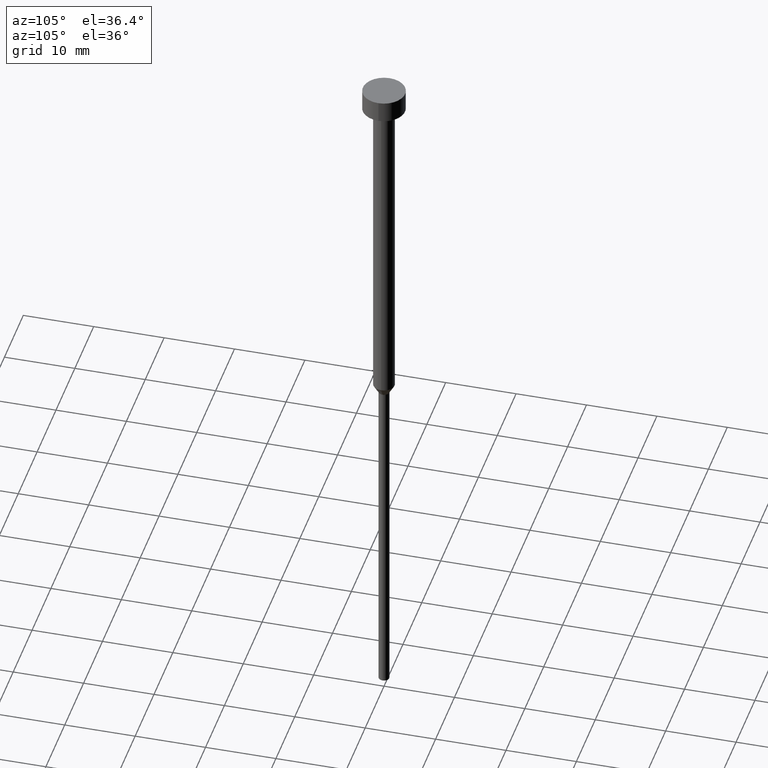
[diagram: clean part render]
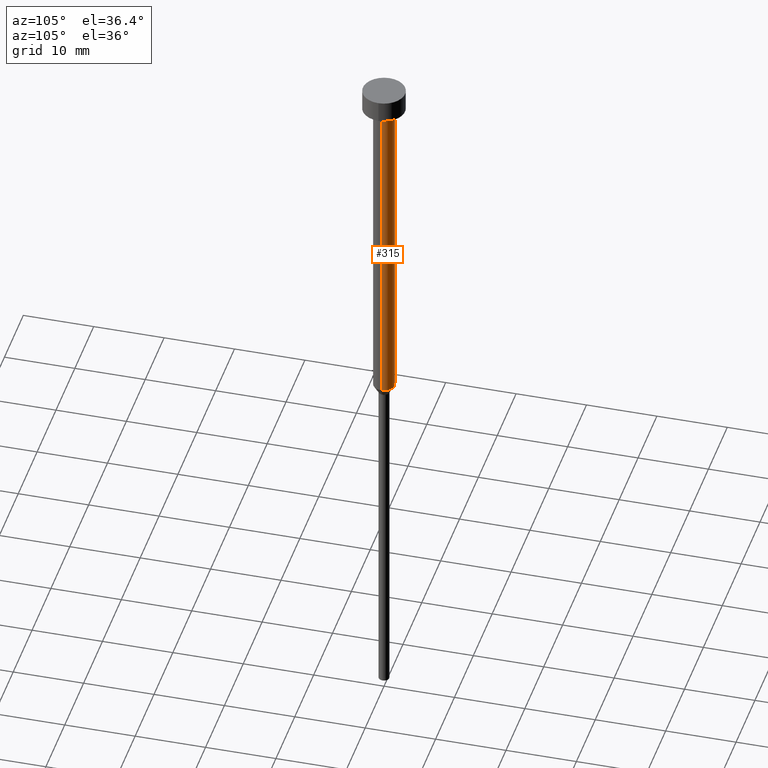
[diagram: same view with one face highlighted and labeled with its STEP entity id]
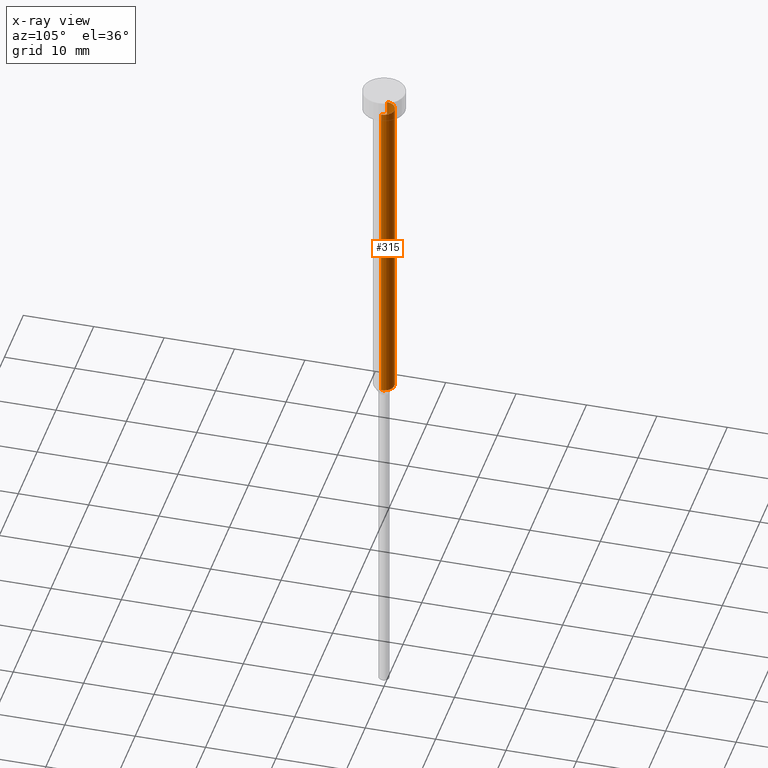
[diagram: x-ray of the same camera — body ghosted, the highlighted face saturated]
A machine part, auxiliary view. The second image highlights one B-rep face of the part: STEP entity #315.
The next image is the same camera in x-ray: the body ghosted, the highlighted face saturated — about 0% of this face is hidden behind the body in this view.
In plain terms, the highlighted cylindrical surface (edge-blend (fillet) strip) has radius 1.5 mm, axis along (-0, -0, 1).
Its self-contained STEP definition (entity closure, byte-faithful):
#5 = VERTEX_POINT ( 'NONE', #287 ) ;
#8 = ORIENTED_EDGE ( 'NONE', *, *, #51, .F. ) ;
#10 = AXIS2_PLACEMENT_3D ( 'NONE', #277, #228, #66 ) ;
#12 = CARTESIAN_POINT ( 'NONE',  ( -1.500000000000000000, 1.836970198721029934E-16, -3.000000000000000888 ) ) ;
#36 = ORIENTED_EDGE ( 'NONE', *, *, #55, .T. ) ;
#39 = CARTESIAN_POINT ( 'NONE',  ( 1.500000000000000000, 0.000000000000000000, -3.000000000000000888 ) ) ;
#45 = DIRECTION ( 'NONE',  ( 1.000000000000000000, 0.000000000000000000, 0.000000000000000000 ) ) ;
#50 = CARTESIAN_POINT ( 'NONE',  ( -1.500000000000000000, 1.836970198721029934E-16, 0.000000000000000000 ) ) ;
#51 = EDGE_CURVE ( 'NONE', #324, #270, #305, .T. ) ;
#54 = CARTESIAN_POINT ( 'NONE',  ( 1.500000000000000000, 0.000000000000000000, 0.000000000000000000 ) ) ;
#55 = EDGE_CURVE ( 'NONE', #5, #270, #211, .T. ) ;
#66 = DIRECTION ( 'NONE',  ( 1.000000000000000000, 0.000000000000000000, 0.000000000000000000 ) ) ;
#138 = VECTOR ( 'NONE', #291, 1000.000000000000000 ) ;
#141 = AXIS2_PLACEMENT_3D ( 'NONE', #201, #226, #199 ) ;
#150 = AXIS2_PLACEMENT_3D ( 'NONE', #180, #183, #45 ) ;
#167 = ORIENTED_EDGE ( 'NONE', *, *, #213, .F. ) ;
#175 = CARTESIAN_POINT ( 'NONE',  ( 1.500000000000000000, 0.000000000000000000, -50.00000000000000000 ) ) ;
#180 = CARTESIAN_POINT ( 'NONE',  ( 0.000000000000000000, 0.000000000000000000, -3.000000000000000888 ) ) ;
#183 = DIRECTION ( 'NONE',  ( -0.000000000000000000, -0.000000000000000000, 1.000000000000000000 ) ) ;
#190 = VECTOR ( 'NONE', #320, 1000.000000000000000 ) ;
#199 = DIRECTION ( 'NONE',  ( 1.000000000000000000, 0.000000000000000000, 0.000000000000000000 ) ) ;
#201 = CARTESIAN_POINT ( 'NONE',  ( 0.000000000000000000, 0.000000000000000000, -50.00000000000000000 ) ) ;
#211 = LINE ( 'NONE', #50, #138 ) ;
#212 = CIRCLE ( 'NONE', #141, 1.500000000000000000 ) ;
#213 = EDGE_CURVE ( 'NONE', #271, #324, #293, .T. ) ;
#218 = ORIENTED_EDGE ( 'NONE', *, *, #342, .T. ) ;
#226 = DIRECTION ( 'NONE',  ( -0.000000000000000000, -0.000000000000000000, 1.000000000000000000 ) ) ;
#228 = DIRECTION ( 'NONE',  ( -0.000000000000000000, -0.000000000000000000, 1.000000000000000000 ) ) ;
#245 = EDGE_LOOP ( 'NONE', ( #218, #36, #8, #167 ) ) ;
#270 = VERTEX_POINT ( 'NONE', #12 ) ;
#271 = VERTEX_POINT ( 'NONE', #175 ) ;
#277 = CARTESIAN_POINT ( 'NONE',  ( 0.000000000000000000, 0.000000000000000000, 0.000000000000000000 ) ) ;
#287 = CARTESIAN_POINT ( 'NONE',  ( -1.500000000000000000, 1.836970198721029934E-16, -50.00000000000000000 ) ) ;
#291 = DIRECTION ( 'NONE',  ( -0.000000000000000000, -0.000000000000000000, 1.000000000000000000 ) ) ;
#293 = LINE ( 'NONE', #54, #190 ) ;
#303 = FACE_OUTER_BOUND ( 'NONE', #245, .T. ) ;
#305 = CIRCLE ( 'NONE', #150, 1.500000000000000000 ) ;
#315 = ADVANCED_FACE ( 'NONE', ( #303 ), #339, .T. ) ;
#320 = DIRECTION ( 'NONE',  ( -0.000000000000000000, -0.000000000000000000, 1.000000000000000000 ) ) ;
#324 = VERTEX_POINT ( 'NONE', #39 ) ;
#339 = CYLINDRICAL_SURFACE ( 'NONE', #10, 1.500000000000000000 ) ;
#342 = EDGE_CURVE ( 'NONE', #271, #5, #212, .T. ) ;